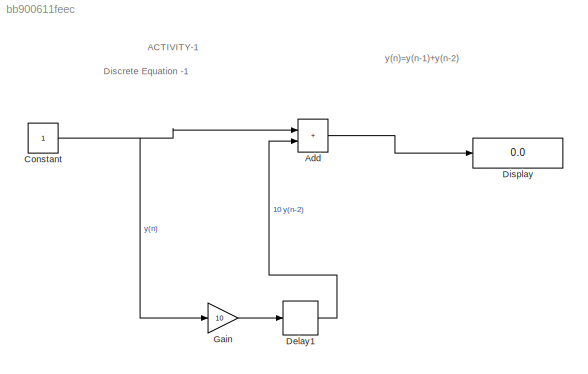
MODEL slx_bb900611feec
KIND model
CONFIG AbsTol = auto
CONFIG EnableMultiTasking = off
CONFIG FixedStep = auto
CONFIG MaxStep = auto
CONFIG MinStep = auto
CONFIG RelTol = 1e-3
CONFIG SampleTimeConstraint = Unconstrained
CONFIG SolverName = VariableStepAuto
CONFIG StartTime = 0.0
CONFIG StopTime = 10.0
BLOCK [Sum] Add
  IconShape = rectangular
  Ports = [2, 1]
BLOCK [Constant] Constant
BLOCK [Delay] Delay1
  InputPortMap = u0
  Ports = [1, 1]
BLOCK [Display] Display
  Decimation = 1
  Ports = [1]
BLOCK [Gain] Gain
  Gain = 10
ANNOTATION (root): ACTIVITY-1
ANNOTATION (root): Discrete Equation -1
ANNOTATION (root): y(n)=y(n-1)+y(n-2)
LINE Add:1 -> Display:1
NET Constant:1 -> Add:1, Gain:1
LINE Delay1:1 -> Add:2
LINE Gain:1 -> Delay1:1
note: NET lines group one-source signal fan-out (src -> all destinations, sorted); 1:1 wires keep LINE
